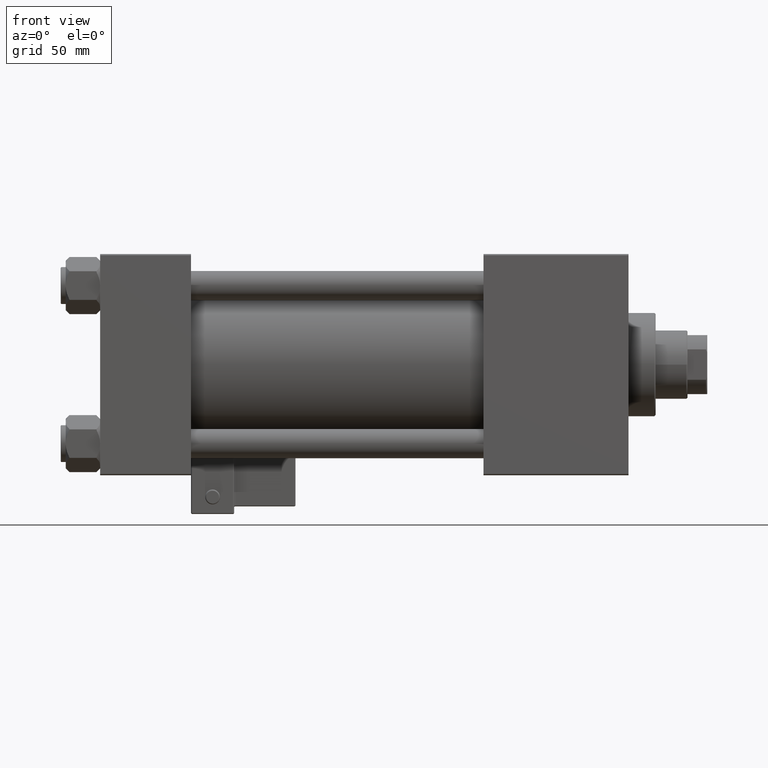
[diagram: clean part render]
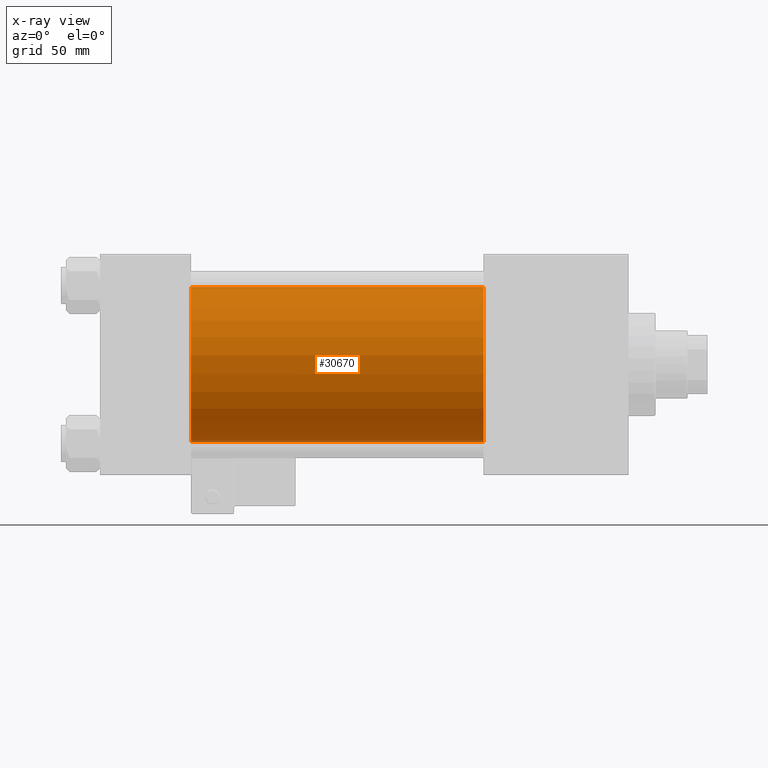
[diagram: x-ray — body ghosted, one internal face saturated and labeled with its STEP entity id]
A machine part, front view, then the same camera in x-ray: the body is ghosted and one INTERNAL B-rep face — a face not visible from any outside direction — is saturated and labeled: STEP entity #30670.
In plain terms, the highlighted cylindrical surface (partial cylindrical patch) has radius 31.5 mm, axis along (-1, -0, -0).
Its self-contained STEP definition (entity closure, byte-faithful):
#1220 = DIRECTION ( 'NONE',  ( 1.000000000000000000, 0.000000000000000000, 0.000000000000000000 ) ) ;
#3242 = VERTEX_POINT ( 'NONE', #8142 ) ;
#3739 = FACE_OUTER_BOUND ( 'NONE', #36353, .T. ) ;
#4208 = CARTESIAN_POINT ( 'NONE',  ( 156.0000000000000000, -2.602085213965210642E-15, 0.000000000000000000 ) ) ;
#6150 = VECTOR ( 'NONE', #6851, 1000.000000000000000 ) ;
#6328 = CARTESIAN_POINT ( 'NONE',  ( 156.0000000000000000, -2.602085213965210642E-15, 31.50000000000000000 ) ) ;
#6851 = DIRECTION ( 'NONE',  ( -1.000000000000000000, -0.000000000000000000, -0.000000000000000000 ) ) ;
#8105 = AXIS2_PLACEMENT_3D ( 'NONE', #53294, #16172, #32697 ) ;
#8142 = CARTESIAN_POINT ( 'NONE',  ( 37.00000000000000000, 1.255552203348951850E-15, -31.50000000000000000 ) ) ;
#9333 = CARTESIAN_POINT ( 'NONE',  ( 37.00000000000000000, -2.602085213965210642E-15, 0.000000000000000000 ) ) ;
#11546 = DIRECTION ( 'NONE',  ( 1.000000000000000000, 0.000000000000000000, 0.000000000000000000 ) ) ;
#12100 = LINE ( 'NONE', #32952, #53043 ) ;
#12847 = DIRECTION ( 'NONE',  ( 0.000000000000000000, 0.000000000000000000, -1.000000000000000000 ) ) ;
#14085 = CIRCLE ( 'NONE', #44348, 31.50000000000000000 ) ;
#16172 = DIRECTION ( 'NONE',  ( -1.000000000000000000, -0.000000000000000000, -0.000000000000000000 ) ) ;
#17543 = VERTEX_POINT ( 'NONE', #22504 ) ;
#18580 = EDGE_CURVE ( 'NONE', #42671, #17543, #27663, .T. ) ;
#19034 = CARTESIAN_POINT ( 'NONE',  ( 37.00000000000000000, -2.602085213965210642E-15, 31.50000000000000000 ) ) ;
#20249 = CYLINDRICAL_SURFACE ( 'NONE', #8105, 31.50000000000000000 ) ;
#21810 = ORIENTED_EDGE ( 'NONE', *, *, #18580, .T. ) ;
#22504 = CARTESIAN_POINT ( 'NONE',  ( 156.0000000000000000, 1.255552203348951850E-15, -31.50000000000000000 ) ) ;
#22549 = ORIENTED_EDGE ( 'NONE', *, *, #29681, .F. ) ;
#24414 = ORIENTED_EDGE ( 'NONE', *, *, #42701, .T. ) ;
#25580 = EDGE_CURVE ( 'NONE', #42650, #3242, #14085, .T. ) ;
#27433 = LINE ( 'NONE', #43934, #6150 ) ;
#27663 = CIRCLE ( 'NONE', #50138, 31.50000000000000000 ) ;
#29681 = EDGE_CURVE ( 'NONE', #42671, #42650, #12100, .T. ) ;
#30670 = ADVANCED_FACE ( 'NONE', ( #3739 ), #20249, .F. ) ;
#32697 = DIRECTION ( 'NONE',  ( 0.000000000000000000, 0.000000000000000000, 1.000000000000000000 ) ) ;
#32952 = CARTESIAN_POINT ( 'NONE',  ( 156.0000000000000000, -2.602085213965210642E-15, 31.50000000000000000 ) ) ;
#36353 = EDGE_LOOP ( 'NONE', ( #21810, #24414, #40519, #22549 ) ) ;
#40519 = ORIENTED_EDGE ( 'NONE', *, *, #25580, .F. ) ;
#40780 = DIRECTION ( 'NONE',  ( 0.000000000000000000, 0.000000000000000000, -1.000000000000000000 ) ) ;
#42650 = VERTEX_POINT ( 'NONE', #19034 ) ;
#42671 = VERTEX_POINT ( 'NONE', #6328 ) ;
#42701 = EDGE_CURVE ( 'NONE', #17543, #3242, #27433, .T. ) ;
#43934 = CARTESIAN_POINT ( 'NONE',  ( 156.0000000000000000, 1.255552203348951850E-15, -31.50000000000000000 ) ) ;
#44348 = AXIS2_PLACEMENT_3D ( 'NONE', #9333, #1220, #12847 ) ;
#49468 = DIRECTION ( 'NONE',  ( -1.000000000000000000, -0.000000000000000000, -0.000000000000000000 ) ) ;
#50138 = AXIS2_PLACEMENT_3D ( 'NONE', #4208, #11546, #40780 ) ;
#53043 = VECTOR ( 'NONE', #49468, 1000.000000000000000 ) ;
#53294 = CARTESIAN_POINT ( 'NONE',  ( 156.0000000000000000, -2.602085213965210642E-15, 0.000000000000000000 ) ) ;